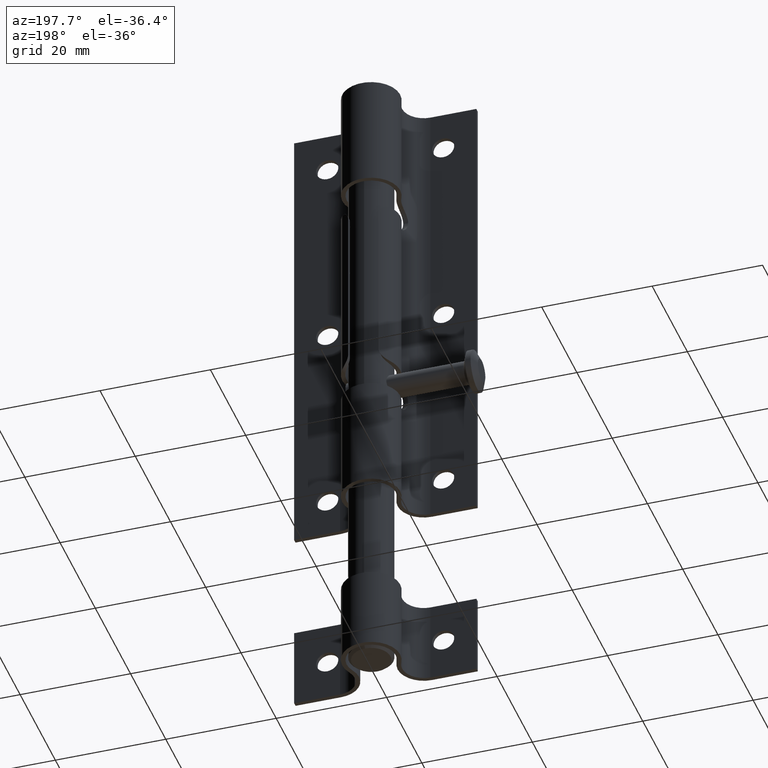
[diagram: clean part render]
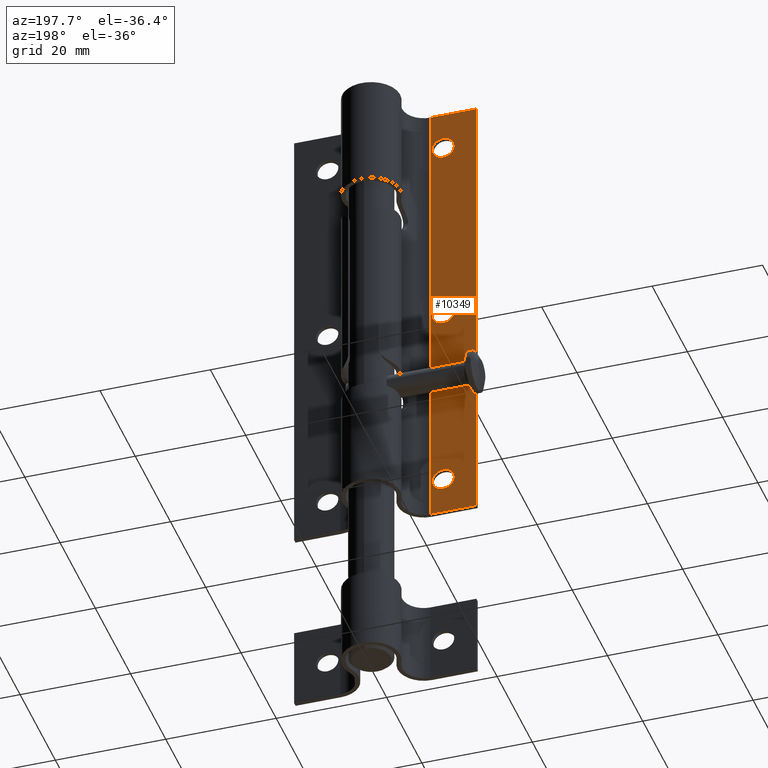
[diagram: same view with one face highlighted and labeled with its STEP entity id]
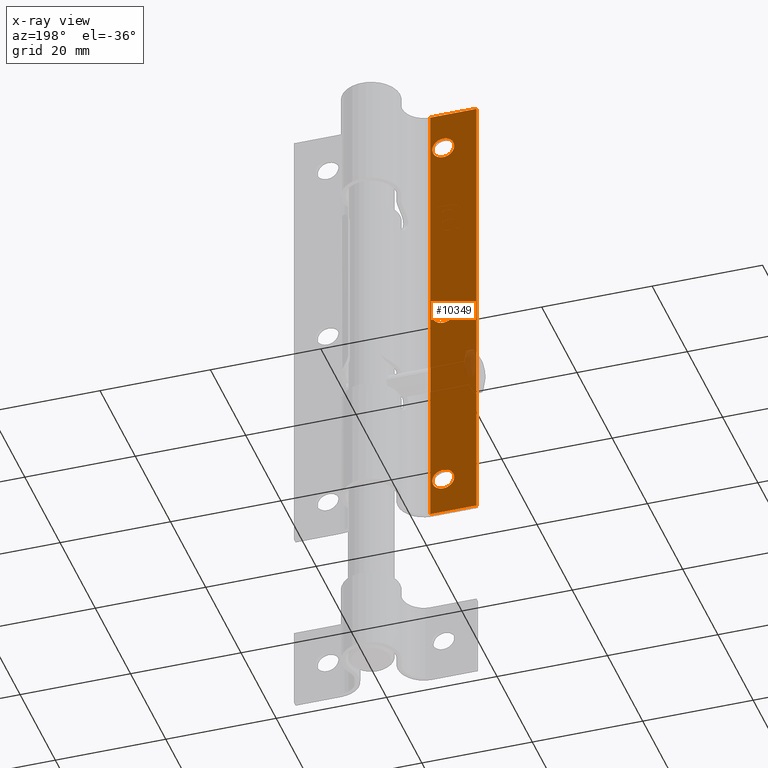
[diagram: x-ray of the same camera — body ghosted, the highlighted face saturated]
A machine part, auxiliary view. The second image highlights one B-rep face of the part: STEP entity #10349.
The next image is the same camera in x-ray: the body ghosted, the highlighted face saturated — about 2% of this face is hidden behind the body in this view.
In plain terms, the highlighted planar face has unit normal (0, -1, 0).
Its self-contained STEP definition (entity closure, byte-faithful):
#162 = EDGE_LOOP ( 'NONE', ( #8222, #833, #13310, #2123 ) ) ;
#295 = CARTESIAN_POINT ( 'NONE',  ( -8.192006389780432940, 0.7999999999999994893, 42.50000000000000000 ) ) ;
#833 = ORIENTED_EDGE ( 'NONE', *, *, #8234, .F. ) ;
#1286 = DIRECTION ( 'NONE',  ( -0.000000000000000000, -0.000000000000000000, -1.000000000000000000 ) ) ;
#1460 = VECTOR ( 'NONE', #11206, 1000.000000000000000 ) ;
#2104 = ORIENTED_EDGE ( 'NONE', *, *, #5993, .F. ) ;
#2123 = ORIENTED_EDGE ( 'NONE', *, *, #3107, .T. ) ;
#2162 = EDGE_LOOP ( 'NONE', ( #3451 ) ) ;
#2743 = CARTESIAN_POINT ( 'NONE',  ( -10.50000000000000000, 0.8000000000000000444, -33.49999999999999289 ) ) ;
#2933 = CARTESIAN_POINT ( 'NONE',  ( -16.50000000000000000, 0.8000000000000000444, 42.50000000000000000 ) ) ;
#3107 = EDGE_CURVE ( 'NONE', #5512, #5091, #11606, .T. ) ;
#3451 = ORIENTED_EDGE ( 'NONE', *, *, #10991, .F. ) ;
#3617 = CARTESIAN_POINT ( 'NONE',  ( -16.50000000000000000, 0.8000000000000000444, 42.50000000000000000 ) ) ;
#3950 = DIRECTION ( 'NONE',  ( 0.000000000000000000, 1.000000000000000000, 0.000000000000000000 ) ) ;
#4108 = DIRECTION ( 'NONE',  ( -1.000000000000000000, -0.000000000000000000, -0.000000000000000000 ) ) ;
#4223 = DIRECTION ( 'NONE',  ( 0.000000000000000000, 1.000000000000000000, 0.000000000000000000 ) ) ;
#4741 = CARTESIAN_POINT ( 'NONE',  ( -16.50000000000000000, 0.8000000000000000444, 42.50000000000000000 ) ) ;
#4989 = LINE ( 'NONE', #3617, #14931 ) ;
#5091 = VERTEX_POINT ( 'NONE', #8851 ) ;
#5307 = DIRECTION ( 'NONE',  ( 0.000000000000000000, 0.000000000000000000, 1.000000000000000000 ) ) ;
#5512 = VERTEX_POINT ( 'NONE', #11029 ) ;
#5514 = CARTESIAN_POINT ( 'NONE',  ( -10.50000000000000000, 0.8000000000000000444, 35.50000000000000000 ) ) ;
#5517 = FACE_BOUND ( 'NONE', #9312, .T. ) ;
#5575 = AXIS2_PLACEMENT_3D ( 'NONE', #5514, #4223, #13728 ) ;
#5658 = VERTEX_POINT ( 'NONE', #14250 ) ;
#5800 = PLANE ( 'NONE',  #8023 ) ;
#5943 = CARTESIAN_POINT ( 'NONE',  ( -16.50000000000000000, 0.8000000000000000444, 42.50000000000000000 ) ) ;
#5993 = EDGE_CURVE ( 'NONE', #13547, #13547, #14403, .T. ) ;
#6066 = CARTESIAN_POINT ( 'NONE',  ( -10.50000000000000000, 0.8000000000000000444, 37.50000000000000000 ) ) ;
#7220 = CARTESIAN_POINT ( 'NONE',  ( -10.50000000000000000, 0.8000000000000000444, -35.50000000000000000 ) ) ;
#7598 = DIRECTION ( 'NONE',  ( 0.000000000000000000, 1.000000000000000000, 0.000000000000000000 ) ) ;
#8023 = AXIS2_PLACEMENT_3D ( 'NONE', #4741, #12941, #8247 ) ;
#8222 = ORIENTED_EDGE ( 'NONE', *, *, #15075, .T. ) ;
#8234 = EDGE_CURVE ( 'NONE', #10472, #5658, #4989, .T. ) ;
#8247 = DIRECTION ( 'NONE',  ( 0.000000000000000000, -0.000000000000000000, -1.000000000000000000 ) ) ;
#8604 = AXIS2_PLACEMENT_3D ( 'NONE', #7220, #3950, #13244 ) ;
#8682 = CARTESIAN_POINT ( 'NONE',  ( -10.49999999999999467, 0.8000000000000000444, 2.830675323338755305E-15 ) ) ;
#8849 = EDGE_CURVE ( 'NONE', #10595, #10595, #13057, .T. ) ;
#8851 = CARTESIAN_POINT ( 'NONE',  ( -8.192006389780432940, 0.7999999999999994893, -42.50000000000000000 ) ) ;
#9312 = EDGE_LOOP ( 'NONE', ( #10988 ) ) ;
#10349 = ADVANCED_FACE ( 'NONE', ( #12859, #14143, #5517, #13777 ), #5800, .F. ) ;
#10472 = VERTEX_POINT ( 'NONE', #5943 ) ;
#10595 = VERTEX_POINT ( 'NONE', #2743 ) ;
#10799 = CARTESIAN_POINT ( 'NONE',  ( -10.49999999999999467, 0.8000000000000000444, 2.000000000000004441 ) ) ;
#10877 = AXIS2_PLACEMENT_3D ( 'NONE', #8682, #7598, #5307 ) ;
#10927 = EDGE_LOOP ( 'NONE', ( #2104 ) ) ;
#10988 = ORIENTED_EDGE ( 'NONE', *, *, #8849, .F. ) ;
#10991 = EDGE_CURVE ( 'NONE', #14453, #14453, #14127, .T. ) ;
#11029 = CARTESIAN_POINT ( 'NONE',  ( -8.192006389780432940, 0.7999999999999994893, 42.50000000000000000 ) ) ;
#11174 = CARTESIAN_POINT ( 'NONE',  ( -16.50000000000000000, 0.8000000000000000444, -42.50000000000000000 ) ) ;
#11206 = DIRECTION ( 'NONE',  ( -0.000000000000000000, -0.000000000000000000, -1.000000000000000000 ) ) ;
#11606 = LINE ( 'NONE', #295, #1460 ) ;
#12677 = DIRECTION ( 'NONE',  ( -1.000000000000000000, -0.000000000000000000, -0.000000000000000000 ) ) ;
#12859 = FACE_BOUND ( 'NONE', #2162, .T. ) ;
#12941 = DIRECTION ( 'NONE',  ( 0.000000000000000000, -1.000000000000000000, 0.000000000000000000 ) ) ;
#13057 = CIRCLE ( 'NONE', #8604, 2.000000000000001776 ) ;
#13244 = DIRECTION ( 'NONE',  ( 0.000000000000000000, 0.000000000000000000, 1.000000000000000000 ) ) ;
#13310 = ORIENTED_EDGE ( 'NONE', *, *, #14267, .F. ) ;
#13547 = VERTEX_POINT ( 'NONE', #6066 ) ;
#13726 = LINE ( 'NONE', #11174, #14843 ) ;
#13728 = DIRECTION ( 'NONE',  ( 0.000000000000000000, 0.000000000000000000, 1.000000000000000000 ) ) ;
#13777 = FACE_OUTER_BOUND ( 'NONE', #162, .T. ) ;
#14127 = CIRCLE ( 'NONE', #10877, 2.000000000000001332 ) ;
#14143 = FACE_BOUND ( 'NONE', #10927, .T. ) ;
#14250 = CARTESIAN_POINT ( 'NONE',  ( -16.50000000000000000, 0.8000000000000000444, -42.50000000000000000 ) ) ;
#14267 = EDGE_CURVE ( 'NONE', #5512, #10472, #14653, .T. ) ;
#14403 = CIRCLE ( 'NONE', #5575, 2.000000000000001776 ) ;
#14453 = VERTEX_POINT ( 'NONE', #10799 ) ;
#14653 = LINE ( 'NONE', #2933, #15024 ) ;
#14843 = VECTOR ( 'NONE', #12677, 1000.000000000000000 ) ;
#14931 = VECTOR ( 'NONE', #1286, 1000.000000000000000 ) ;
#15024 = VECTOR ( 'NONE', #4108, 1000.000000000000000 ) ;
#15075 = EDGE_CURVE ( 'NONE', #5091, #5658, #13726, .T. ) ;